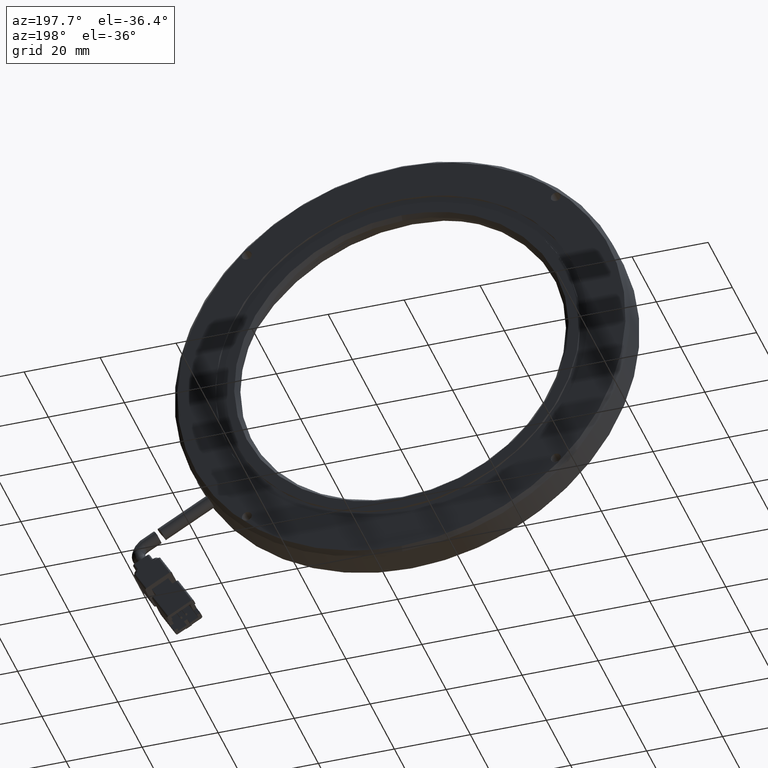
[diagram: clean part render]
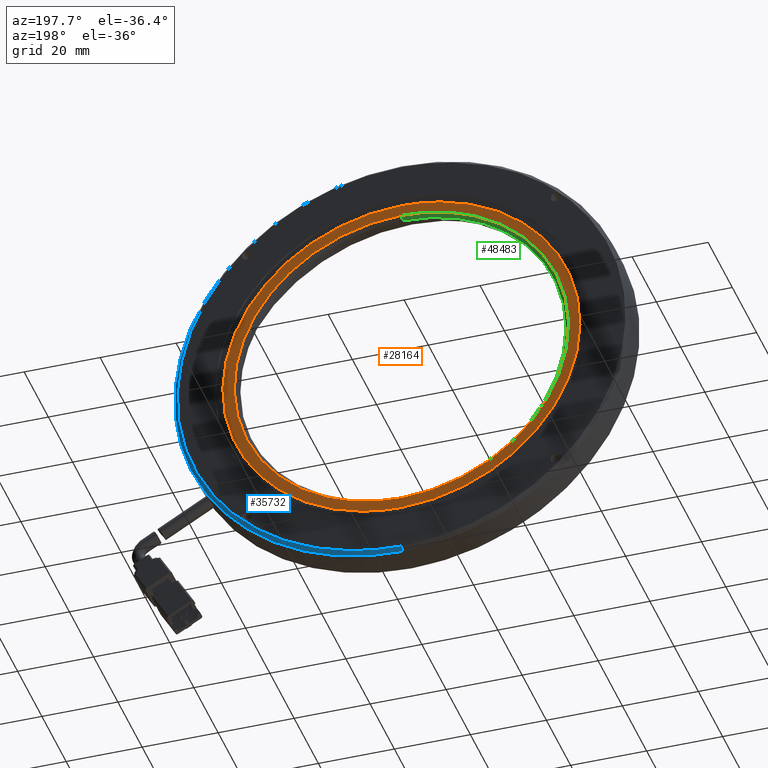
[diagram: same view with three faces highlighted in distinct colors, each labeled with its STEP entity id]
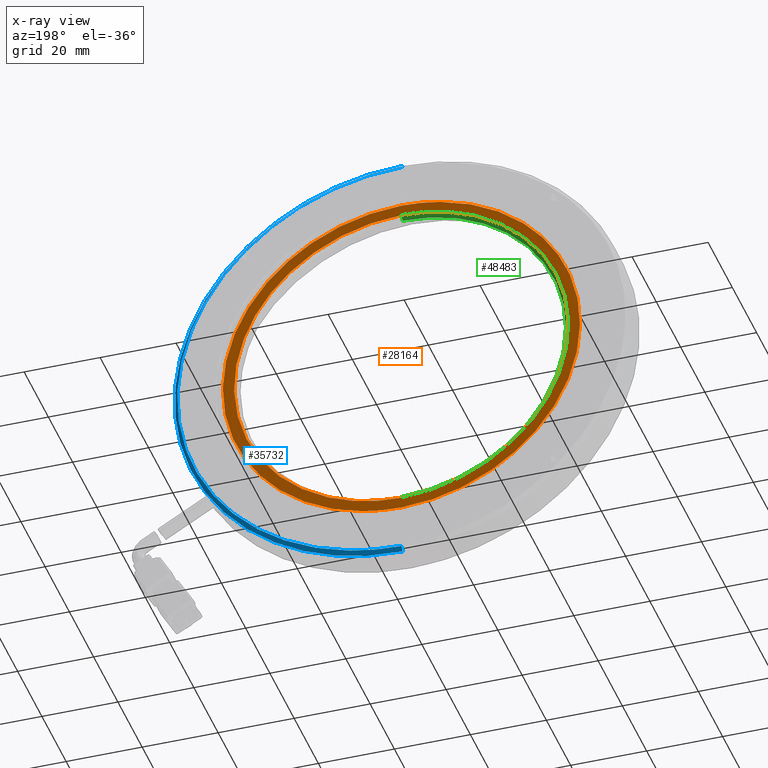
[diagram: x-ray of the same camera — body ghosted, the three highlighted faces saturated]
A machine part, auxiliary view with three faces highlighted in distinct colors.
The next image is the same camera in x-ray (body ghosted, the three faces saturated) — at least one of them is partly hidden behind the body in this view.
Their STEP definitions:

[orange] entity #28164 — the highlighted planar face has unit normal (0, -1, 0).
#1624 = CARTESIAN_POINT ( 'NONE',  ( 42.27875614161242600, 28.01889671361272600, -41.75274860195248300 ) ) ;
#1828 = CARTESIAN_POINT ( 'NONE',  ( 12.45624510954868000, 28.01889671361273000, 2.879793265795462800 ) ) ;
#1859 = CARTESIAN_POINT ( 'NONE',  ( 59.33603837535002900, 28.01889671361271900, 44.00000000000101600 ) ) ;
#2050 = CARTESIAN_POINT ( 'NONE',  ( 45.04781209515619600, 28.01889671361273300, 42.59273254218289400 ) ) ;
#2078 = CARTESIAN_POINT ( 'NONE',  ( 99.04897765173407700, 28.01889671361272200, 11.40843301438941500 ) ) ;
#2174 = CARTESIAN_POINT ( 'NONE',  ( 15.66712912229307600, 28.01889671362000900, -23.55259787212648300 ) ) ;
#2283 = CARTESIAN_POINT ( 'NONE',  ( 78.50687477218045300, 28.01889671361272200, -38.18459035704531600 ) ) ;
#2384 = CARTESIAN_POINT ( 'NONE',  ( 21.04583658217751500, 28.01889671362000200, 31.05757796684702400 ) ) ;
#3581 = CARTESIAN_POINT ( 'NONE',  ( 101.0564935736246200, 28.01889671361999800, 15.14247953575757100 ) ) ;
#3660 = ORIENTED_EDGE ( 'NONE', *, *, #35077, .F. ) ;
#3782 = CARTESIAN_POINT ( 'NONE',  ( 85.12721967929337600, 28.01889671361999500, -37.36904331737033400 ) ) ;
#4175 = B_SPLINE_CURVE_WITH_KNOTS ( 'NONE', 3,
 ( #11960, #6920, #41556, #46542, #16950, #51505, #21869, #56477, #26808, #61440, #31823, #2174, #36772, #7141, #41774, #12166, #46744, #17155, #51718, #22083, #56681, #27017, #61648, #32036, #2384, #36989, #7356, #41996, #12390, #46969, #17362, #51928, #22297, #56888, #27235, #61861 ),
 .UNSPECIFIED., .F., .F.,
 ( 4, 2, 2, 2, 2, 2, 2, 2, 2, 2, 2, 2, 2, 2, 2, 2, 2, 4 ),
 ( 0.0000000000000000000, 0.06249999999999993100, 0.1249999999999998600, 0.1874999999999997800, 0.2499999999999997800, 0.3124999999999997800, 0.3749999999999997200, 0.4374999999999997800, 0.4999999999999997800, 0.5624999999999997800, 0.6249999999999998900, 0.6874999999999998900, 0.7499999999999998900, 0.8125000000000000000, 0.8750000000000000000, 0.9375000000000001100, 0.9687500000000000000, 1.000000000000000000 ),
 .UNSPECIFIED. ) ;
#5047 = B_SPLINE_CURVE_WITH_KNOTS ( 'NONE', 3,
 ( #32806, #33019, #8355, #42962, #13354, #47936, #18338, #52922, #23258, #57904, #28205, #62843, #33232, #3581, #38183, #8567, #43182, #13568, #48133, #18544, #53146, #23469, #58103, #28428, #63058, #33436, #3782, #38390, #8789, #43398, #13783, #48355, #18765, #53359, #23675, #58327 ),
 .UNSPECIFIED., .F., .F.,
 ( 4, 2, 2, 2, 2, 2, 2, 2, 2, 2, 2, 2, 2, 2, 2, 2, 2, 4 ),
 ( 0.0000000000000000000, 0.06250000000000005600, 0.1250000000000001100, 0.1875000000000001700, 0.2500000000000002200, 0.3125000000000002200, 0.3750000000000002200, 0.4375000000000002200, 0.5000000000000002200, 0.5625000000000002200, 0.6250000000000002200, 0.6875000000000001100, 0.7500000000000001100, 0.8125000000000000000, 0.8750000000000000000, 0.9374999999999998900, 0.9687500000000000000, 1.000000000000000000 ),
 .UNSPECIFIED. ) ;
#6405 = CARTESIAN_POINT ( 'NONE',  ( 53.57645184375905200, 28.01889671361273300, -44.00000000000159900 ) ) ;
#6597 = CARTESIAN_POINT ( 'NONE',  ( 34.40561544690378800, 28.01889671361272600, -38.18459035703622100 ) ) ;
#6810 = CARTESIAN_POINT ( 'NONE',  ( 13.86351256737062500, 28.01889671361273000, 11.40843301440701300 ) ) ;
#6831 = CARTESIAN_POINT ( 'NONE',  ( 67.86467812396141100, 28.01889671361272200, 42.59273254217816200 ) ) ;
#6920 = CARTESIAN_POINT ( 'NONE',  ( 53.37796336459959400, 28.01889671362000200, -46.99999999999999300 ) ) ;
#7004 = CARTESIAN_POINT ( 'NONE',  ( 53.57645184376814700, 28.01889671361273000, 44.00000000000220300 ) ) ;
#7032 = CARTESIAN_POINT ( 'NONE',  ( 100.4562451095524800, 28.01889671361272200, 2.879793265777309800 ) ) ;
#7141 = CARTESIAN_POINT ( 'NONE',  ( 11.85600634319127900, 28.01889671362000200, -15.14251150347716800 ) ) ;
#7251 = CARTESIAN_POINT ( 'NONE',  ( 70.63373407747030800, 28.01889671361272200, -41.75274860195832400 ) ) ;
#7356 = CARTESIAN_POINT ( 'NONE',  ( 27.78524107864050300, 28.01889671362000200, 37.36902756966435400 ) ) ;
#8355 = CARTESIAN_POINT ( 'NONE',  ( 62.60667653709536800, 28.01889671361999800, 46.69735417443386200 ) ) ;
#8567 = CARTESIAN_POINT ( 'NONE',  ( 103.1536635141498800, 28.01889671361999800, 6.150444202660343900 ) ) ;
#8789 = CARTESIAN_POINT ( 'NONE',  ( 77.28600821579917100, 28.01889671362000200, -42.24442759209775000 ) ) ;
#9086 = DIRECTION ( 'NONE',  ( 0.0000000000000000000, 0.0000000000000000000, 1.000000000000000000 ) ) ;
#11621 = CARTESIAN_POINT ( 'NONE',  ( 27.37986808399518800, 28.01889671361273000, -33.14901971886386900 ) ) ;
#11828 = CARTESIAN_POINT ( 'NONE',  ( 16.90759485050915200, 28.01889671361273000, 19.49865308019773700 ) ) ;
#11859 = CARTESIAN_POINT ( 'NONE',  ( 75.95489818975181600, 28.01889671361272200, 39.54865025903883000 ) ) ;
#11960 = CARTESIAN_POINT ( 'NONE',  ( 56.45624510954474600, 28.01889671361816200, -47.00000000000000000 ) ) ;
#12074 = CARTESIAN_POINT ( 'NONE',  ( 100.1726172428548700, 28.01889671361272200, -5.759515323031958900 ) ) ;
#12116 = EDGE_CURVE ( 'NONE', #16103, #16167, #28602, .T. ) ;
#12166 = CARTESIAN_POINT ( 'NONE',  ( 9.758826704907450600, 28.01889671361999800, -6.150444202682146900 ) ) ;
#12174 = EDGE_LOOP ( 'NONE', ( #14678, #3660 ) ) ;
#12288 = CARTESIAN_POINT ( 'NONE',  ( 62.21576043255039700, 28.01889671361272200, -43.71637213330903600 ) ) ;
#12390 = CARTESIAN_POINT ( 'NONE',  ( 35.62648200300878900, 28.01889671361999500, 42.24442759199448000 ) ) ;
#13354 = CARTESIAN_POINT ( 'NONE',  ( 71.59869958405859300, 28.01889671361999100, 44.60018796082542300 ) ) ;
#13568 = CARTESIAN_POINT ( 'NONE',  ( 103.4562778533290300, 28.01889671361999800, -3.077915830574339900 ) ) ;
#13783 = CARTESIAN_POINT ( 'NONE',  ( 68.64422515175417100, 28.01889671361999100, -45.49640774860339600 ) ) ;
#14678 = ORIENTED_EDGE ( 'NONE', *, *, #12116, .F. ) ;
#16103 = VERTEX_POINT ( 'NONE', #38941 ) ;
#16167 = VERTEX_POINT ( 'NONE', #34624 ) ;
#16617 = CARTESIAN_POINT ( 'NONE',  ( 21.47150958395869600, 28.01889671361273300, -26.83955084307982000 ) ) ;
#16837 = CARTESIAN_POINT ( 'NONE',  ( 21.47150958396423800, 28.01889671361274000, 26.83955084308705700 ) ) ;
#16862 = CARTESIAN_POINT ( 'NONE',  ( 83.29579595264066000, 28.01889671361272200, 34.98473552558299800 ) ) ;
#16950 = CARTESIAN_POINT ( 'NONE',  ( 41.31379063470103600, 28.01889671361999100, -44.60018796062404800 ) ) ;
#17057 = CARTESIAN_POINT ( 'NONE',  ( 98.20899371149808100, 28.01889671361272200, -14.17748896795047900 ) ) ;
#17155 = CARTESIAN_POINT ( 'NONE',  ( 9.456212365770921800, 28.01889671361999800, 3.077915830179815100 ) ) ;
#17265 = CARTESIAN_POINT ( 'NONE',  ( 56.45624510955278900, 28.01889671361563600, -44.00000000000096600 ) ) ;
#17362 = CARTESIAN_POINT ( 'NONE',  ( 44.26823182231879600, 28.01889671362000600, 45.49640447385357300 ) ) ;
#18162 = EDGE_CURVE ( 'NONE', #28397, #28272, #4175, .T. ) ;
#18338 = CARTESIAN_POINT ( 'NONE',  ( 80.00880659876021600, 28.01889671361999100, 40.78906153549915800 ) ) ;
#18544 = CARTESIAN_POINT ( 'NONE',  ( 101.9527235094824100, 28.01889671361999800, -12.18799409606595900 ) ) ;
#18765 = CARTESIAN_POINT ( 'NONE',  ( 62.59476272193435900, 28.01889671361999800, -46.62280358932520800 ) ) ;
#21545 = CARTESIAN_POINT ( 'NONE',  ( 16.90759485050512400, 28.01889671361273300, -19.49865308018957700 ) ) ;
#21734 = CARTESIAN_POINT ( 'NONE',  ( 27.37986808400204100, 28.01889671361273000, 33.14901971886985900 ) ) ;
#21766 = CARTESIAN_POINT ( 'NONE',  ( 89.60526482842286100, 28.01889671361272200, 29.07637702554452700 ) ) ;
#21869 = CARTESIAN_POINT ( 'NONE',  ( 32.90368362023824700, 28.01889671361999800, -40.78906153540997800 ) ) ;
#21981 = CARTESIAN_POINT ( 'NONE',  ( 94.64083546657937500, 28.01889671361272200, -22.05062966265801100 ) ) ;
#22083 = CARTESIAN_POINT ( 'NONE',  ( 10.95976670950331000, 28.01889671362000200, 12.18799409553049700 ) ) ;
#22297 = CARTESIAN_POINT ( 'NONE',  ( 50.31772749712150300, 28.01889671362000600, 46.62280358932374500 ) ) ;
#22682 = ORIENTED_EDGE ( 'NONE', *, *, #32540, .T. ) ;
#23258 = CARTESIAN_POINT ( 'NONE',  ( 87.51380188337918800, 28.01889671361999500, 35.41043435053649800 ) ) ;
#23469 = CARTESIAN_POINT ( 'NONE',  ( 98.70076174155750000, 28.01889671361999500, -20.82972782845132500 ) ) ;
#23675 = CARTESIAN_POINT ( 'NONE',  ( 57.99573682294303700, 28.01889671361999800, -47.00000000000000700 ) ) ;
#24683 = FACE_BOUND ( 'NONE', #12174, .T. ) ;
#25263 = EDGE_LOOP ( 'NONE', ( #34090, #22682 ) ) ;
#26484 = CARTESIAN_POINT ( 'NONE',  ( 13.86351256736827700, 28.01889671361273700, -11.40843301439821500 ) ) ;
#26686 = CARTESIAN_POINT ( 'NONE',  ( 34.40561544691168200, 28.01889671361272600, 38.18459035704077600 ) ) ;
#26711 = CARTESIAN_POINT ( 'NONE',  ( 94.64083546659301800, 28.01889671361272200, 22.05062966263436800 ) ) ;
#26808 = CARTESIAN_POINT ( 'NONE',  ( 25.39868833551739900, 28.01889671361999800, -35.41043435029041600 ) ) ;
#26922 = CARTESIAN_POINT ( 'NONE',  ( 89.60526482840485600, 28.01889671361272200, -29.07637702556507300 ) ) ;
#27017 = CARTESIAN_POINT ( 'NONE',  ( 14.21172847767351000, 28.01889671361999500, 20.82972782869671100 ) ) ;
#27235 = CARTESIAN_POINT ( 'NONE',  ( 54.91675339618277700, 28.01889671361999800, 46.99999999999999300 ) ) ;
#28164 = ADVANCED_FACE ( 'NONE', ( #24683, #43284 ), #63343, .F. ) ;
#28205 = CARTESIAN_POINT ( 'NONE',  ( 93.82527267904498600, 28.01889671361999800, 28.67100403122686500 ) ) ;
#28272 = VERTEX_POINT ( 'NONE', #29364 ) ;
#28397 = VERTEX_POINT ( 'NONE', #55775 ) ;
#28428 = CARTESIAN_POINT ( 'NONE',  ( 93.82536689066581900, 28.01889671361999500, -28.67098680179222500 ) ) ;
#28602 = B_SPLINE_CURVE_WITH_KNOTS ( 'NONE', 3,
 ( #36474, #1859, #61140, #6831, #41464, #11859, #46450, #16862, #51397, #21766, #56387, #26711, #61345, #31726, #2078, #36675, #7032, #41669, #12074, #46647, #17057, #51614, #21981, #56573, #26922, #61548, #31936, #2283, #36890, #7251, #41884, #12288, #46864, #17265 ),
 .UNSPECIFIED., .F., .F.,
 ( 4, 2, 2, 2, 2, 2, 2, 2, 2, 2, 2, 2, 2, 2, 2, 2, 4 ),
 ( 0.0000000000000000000, 0.06250000000000000000, 0.1250000000000000000, 0.1875000000000000000, 0.2500000000000000000, 0.3125000000000000000, 0.3750000000000000000, 0.4375000000000000000, 0.5000000000000000000, 0.5625000000000000000, 0.6250000000000000000, 0.6875000000000000000, 0.7500000000000000000, 0.8125000000000000000, 0.8750000000000000000, 0.9375000000000000000, 1.000000000000000000 ),
 .UNSPECIFIED. ) ;
#29364 = CARTESIAN_POINT ( 'NONE',  ( 56.45624510956241700, 28.01889671361816200, 47.00000000000000000 ) ) ;
#31277 = CARTESIAN_POINT ( 'NONE',  ( 45.04781209514740700, 28.01889671361271900, -42.59273254218052800 ) ) ;
#31488 = CARTESIAN_POINT ( 'NONE',  ( 12.45624510954808500, 28.01889671361273300, -2.879793265786411800 ) ) ;
#31692 = CARTESIAN_POINT ( 'NONE',  ( 42.27875614162105900, 28.01889671361273300, 41.75274860195541700 ) ) ;
#31726 = CARTESIAN_POINT ( 'NONE',  ( 98.20899371150686400, 28.01889671361272200, 14.17748896792462300 ) ) ;
#31823 = CARTESIAN_POINT ( 'NONE',  ( 19.08721754034947800, 28.01889671361999800, -28.67100403168891300 ) ) ;
#31936 = CARTESIAN_POINT ( 'NONE',  ( 83.29579595261897400, 28.01889671361272200, -34.98473552559961100 ) ) ;
#32036 = CARTESIAN_POINT ( 'NONE',  ( 19.08712332899244400, 28.01889671361999800, 28.67098680249215500 ) ) ;
#32540 = EDGE_CURVE ( 'NONE', #28272, #28397, #5047, .T. ) ;
#32806 = CARTESIAN_POINT ( 'NONE',  ( 56.45624510956241700, 28.01889671361816200, 47.00000000000000000 ) ) ;
#33019 = CARTESIAN_POINT ( 'NONE',  ( 59.53452685472065300, 28.01889671362000600, 47.00000000000000700 ) ) ;
#33232 = CARTESIAN_POINT ( 'NONE',  ( 98.70067270154653700, 28.01889671361999800, 20.82976310653620900 ) ) ;
#33436 = CARTESIAN_POINT ( 'NONE',  ( 87.51389764605764300, 28.01889671361999500, -35.41043583182949600 ) ) ;
#34090 = ORIENTED_EDGE ( 'NONE', *, *, #18162, .T. ) ;
#34624 = CARTESIAN_POINT ( 'NONE',  ( 56.45624510955278900, 28.01889671361563600, -44.00000000000096600 ) ) ;
#35077 = EDGE_CURVE ( 'NONE', #16167, #16103, #59916, .T. ) ;
#36251 = CARTESIAN_POINT ( 'NONE',  ( 36.95759202935632700, 28.01889671361272600, -39.54865025904285100 ) ) ;
#36449 = CARTESIAN_POINT ( 'NONE',  ( 12.73987297624390500, 28.01889671361273300, 5.759515323022944800 ) ) ;
#36474 = CARTESIAN_POINT ( 'NONE',  ( 56.45624510956204000, 28.01889671361563600, 44.00000000000096600 ) ) ;
#36649 = CARTESIAN_POINT ( 'NONE',  ( 50.69672978654060800, 28.01889671361272600, 43.71637213330785700 ) ) ;
#36675 = CARTESIAN_POINT ( 'NONE',  ( 100.1726172428584400, 28.01889671361272200, 5.759515323004880100 ) ) ;
#36772 = CARTESIAN_POINT ( 'NONE',  ( 14.21180781983569800, 28.01889671361999800, -20.82973113881216100 ) ) ;
#36890 = CARTESIAN_POINT ( 'NONE',  ( 75.95489818972734500, 28.01889671361272200, -39.54865025905089500 ) ) ;
#36989 = CARTESIAN_POINT ( 'NONE',  ( 25.39861620540418500, 28.01889671362000200, 35.41045946470559600 ) ) ;
#38183 = CARTESIAN_POINT ( 'NONE',  ( 101.9526430628591500, 28.01889671361999800, 12.18804606682832600 ) ) ;
#38390 = CARTESIAN_POINT ( 'NONE',  ( 80.00887244361995000, 28.01889671361999500, -40.78910023908846200 ) ) ;
#38941 = CARTESIAN_POINT ( 'NONE',  ( 56.45624510956204000, 28.01889671361563600, 44.00000000000096600 ) ) ;
#41225 = CARTESIAN_POINT ( 'NONE',  ( 29.61669426646656700, 28.01889671361271500, -34.98473552558852600 ) ) ;
#41430 = CARTESIAN_POINT ( 'NONE',  ( 14.70349650759897000, 28.01889671361273300, 14.17748896794186700 ) ) ;
#41464 = CARTESIAN_POINT ( 'NONE',  ( 70.63373407749620000, 28.01889671361272600, 41.75274860194954800 ) ) ;
#41556 = CARTESIAN_POINT ( 'NONE',  ( 50.30581368313209400, 28.01889671361999800, -46.69735417472219300 ) ) ;
#41644 = CARTESIAN_POINT ( 'NONE',  ( 56.45624510956204000, 28.01889671361563600, 44.00000000000096600 ) ) ;
#41669 = CARTESIAN_POINT ( 'NONE',  ( 100.4562451095507200, 28.01889671361272200, -2.879793265804564000 ) ) ;
#41774 = CARTESIAN_POINT ( 'NONE',  ( 10.95984715628294000, 28.01889671361999100, -12.18804606680415000 ) ) ;
#41884 = CARTESIAN_POINT ( 'NONE',  ( 67.86467812393505000, 28.01889671361272200, -42.59273254218523900 ) ) ;
#41996 = CARTESIAN_POINT ( 'NONE',  ( 32.90364723663602600, 28.01889671361999800, 40.78911598678773500 ) ) ;
#42962 = CARTESIAN_POINT ( 'NONE',  ( 68.64430395154096200, 28.01889671362000200, 45.49646218346579500 ) ) ;
#43182 = CARTESIAN_POINT ( 'NONE',  ( 103.4562123657709400, 28.01889671361999800, 3.077915830545209500 ) ) ;
#43284 = FACE_OUTER_BOUND ( 'NONE', #25263, .T. ) ;
#43398 = CARTESIAN_POINT ( 'NONE',  ( 71.59872464558561900, 28.01889671361999500, -44.60024846397715200 ) ) ;
#46223 = CARTESIAN_POINT ( 'NONE',  ( 23.30722539068314000, 28.01889671361272600, -29.07637702555139800 ) ) ;
#46427 = CARTESIAN_POINT ( 'NONE',  ( 18.27165475251605300, 28.01889671361273300, 22.05062966265017000 ) ) ;
#46450 = CARTESIAN_POINT ( 'NONE',  ( 78.50687477220410000, 28.01889671361272600, 38.18459035703165900 ) ) ;
#46542 = CARTESIAN_POINT ( 'NONE',  ( 44.26818626641495800, 28.01889671361999100, -45.49646218317413100 ) ) ;
#46647 = CARTESIAN_POINT ( 'NONE',  ( 99.04897765172697200, 28.01889671361272200, -11.40843301441579200 ) ) ;
#46744 = CARTESIAN_POINT ( 'NONE',  ( 9.456277853329041200, 28.01889671361999800, -3.077915830150699700 ) ) ;
#46864 = CARTESIAN_POINT ( 'NONE',  ( 59.33603837532278600, 28.01889671361272600, -44.00000000000278500 ) ) ;
#46969 = CARTESIAN_POINT ( 'NONE',  ( 41.31376557379297100, 28.01889671361999500, 44.60024846407486600 ) ) ;
#47936 = CARTESIAN_POINT ( 'NONE',  ( 77.28603327737998500, 28.01889671361999800, 42.24448809522713300 ) ) ;
#48133 = CARTESIAN_POINT ( 'NONE',  ( 103.1535830675153000, 28.01889671362000200, -6.150496173479857600 ) ) ;
#48355 = CARTESIAN_POINT ( 'NONE',  ( 64.11612279055729900, 28.01889671362000200, -46.39715839413153700 ) ) ;
#50741 = CARTESIAN_POINT ( 'NONE',  ( 56.45624510955278900, 28.01889671361563600, -44.00000000000096600 ) ) ;
#51167 = CARTESIAN_POINT ( 'NONE',  ( 18.27165475251150200, 28.01889671361274000, -22.05062966264228000 ) ) ;
#51366 = CARTESIAN_POINT ( 'NONE',  ( 23.30722539068914400, 28.01889671361273300, 29.07637702555824800 ) ) ;
#51397 = CARTESIAN_POINT ( 'NONE',  ( 85.53262213511165200, 28.01889671361272600, 33.14901971885784300 ) ) ;
#51505 = CARTESIAN_POINT ( 'NONE',  ( 35.62645694204687200, 28.01889671362000200, -42.24448809542298700 ) ) ;
#51614 = CARTESIAN_POINT ( 'NONE',  ( 96.00489536858678700, 28.01889671361272200, -19.49865308020589800 ) ) ;
#51718 = CARTESIAN_POINT ( 'NONE',  ( 9.758907151698434000, 28.01889671362000200, 6.150496174012922700 ) ) ;
#51928 = CARTESIAN_POINT ( 'NONE',  ( 48.79638405104377300, 28.01889671361999800, 46.39716003150400100 ) ) ;
#52922 = CARTESIAN_POINT ( 'NONE',  ( 85.12728552420152500, 28.01889671361999800, 37.36908202092725900 ) ) ;
#53146 = CARTESIAN_POINT ( 'NONE',  ( 101.0564045335913300, 28.01889671362000200, -15.14251481389625000 ) ) ;
#53359 = CARTESIAN_POINT ( 'NONE',  ( 59.53133868810628100, 28.01889671361999800, -46.92456071786504200 ) ) ;
#53424 = CARTESIAN_POINT ( 'NONE',  ( 105.3362185838999900, 28.01889671361999800, -48.88000000000000300 ) ) ;
#55775 = CARTESIAN_POINT ( 'NONE',  ( 56.45624510954474600, 28.01889671361816200, -47.00000000000000000 ) ) ;
#55813 = AXIS2_PLACEMENT_3D ( 'NONE', #53424, #62912, #9086 ) ;
#56150 = CARTESIAN_POINT ( 'NONE',  ( 14.70349650759604600, 28.01889671361273700, -14.17748896793324900 ) ) ;
#56368 = CARTESIAN_POINT ( 'NONE',  ( 29.61669426647380700, 28.01889671361273300, 34.98473552559408300 ) ) ;
#56387 = CARTESIAN_POINT ( 'NONE',  ( 91.44098063514681500, 28.01889671361272200, 26.83955084307257600 ) ) ;
#56477 = CARTESIAN_POINT ( 'NONE',  ( 27.78520469498986900, 28.01889671362000200, -37.36908202100972400 ) ) ;
#56573 = CARTESIAN_POINT ( 'NONE',  ( 91.44098063513023100, 28.01889671361272200, -26.83955084309424100 ) ) ;
#56681 = CARTESIAN_POINT ( 'NONE',  ( 11.85608568537575500, 28.01889671362000200, 15.14251481364641100 ) ) ;
#56888 = CARTESIAN_POINT ( 'NONE',  ( 53.38115153101973900, 28.01889671362000200, 46.92456071786475000 ) ) ;
#57904 = CARTESIAN_POINT ( 'NONE',  ( 91.86672576727340800, 28.01889671361999800, 31.05760308098181000 ) ) ;
#58103 = CARTESIAN_POINT ( 'NONE',  ( 97.24526688485518400, 28.01889671361999500, -23.55261510207763800 ) ) ;
#58327 = CARTESIAN_POINT ( 'NONE',  ( 56.45624510954474600, 28.01889671361816200, -47.00000000000000000 ) ) ;
#59916 = B_SPLINE_CURVE_WITH_KNOTS ( 'NONE', 3,
 ( #50741, #6405, #60902, #31277, #1624, #36251, #6597, #41225, #11621, #46223, #16617, #51167, #21545, #56150, #26484, #61119, #31488, #1828, #36449, #6810, #41430, #11828, #46427, #16837, #51366, #21734, #56368, #26686, #61315, #31692, #2050, #36649, #7004, #41644 ),
 .UNSPECIFIED., .F., .F.,
 ( 4, 2, 2, 2, 2, 2, 2, 2, 2, 2, 2, 2, 2, 2, 2, 2, 4 ),
 ( 0.0000000000000000000, 0.06249999999999997200, 0.1249999999999999400, 0.1874999999999999200, 0.2499999999999998900, 0.3124999999999998900, 0.3749999999999998300, 0.4374999999999997800, 0.4999999999999997800, 0.5624999999999997800, 0.6249999999999997800, 0.6874999999999996700, 0.7499999999999996700, 0.8124999999999996700, 0.8749999999999996700, 0.9374999999999997800, 1.000000000000000000 ),
 .UNSPECIFIED. ) ;
#60902 = CARTESIAN_POINT ( 'NONE',  ( 50.69672978653158400, 28.01889671361273000, -43.71637213330667700 ) ) ;
#61119 = CARTESIAN_POINT ( 'NONE',  ( 12.73987297624272200, 28.01889671361273700, -5.759515323013913800 ) ) ;
#61140 = CARTESIAN_POINT ( 'NONE',  ( 62.21576043257745400, 28.01889671361271900, 43.71637213330548400 ) ) ;
#61315 = CARTESIAN_POINT ( 'NONE',  ( 36.95759202936447700, 28.01889671361273300, 39.54865025904688000 ) ) ;
#61345 = CARTESIAN_POINT ( 'NONE',  ( 96.00489536859888100, 28.01889671361272200, 19.49865308018142000 ) ) ;
#61440 = CARTESIAN_POINT ( 'NONE',  ( 21.04576445202310400, 28.01889671361999800, -31.05760308122103200 ) ) ;
#61548 = CARTESIAN_POINT ( 'NONE',  ( 85.53262213509110300, 28.01889671361272200, -33.14901971887584900 ) ) ;
#61648 = CARTESIAN_POINT ( 'NONE',  ( 15.66722333368246800, 28.01889671362000200, 23.55261510137165700 ) ) ;
#61861 = CARTESIAN_POINT ( 'NONE',  ( 56.45624510956241700, 28.01889671361816200, 47.00000000000000000 ) ) ;
#62843 = CARTESIAN_POINT ( 'NONE',  ( 97.24536109650841800, 28.01889671361999800, 23.55259787259453900 ) ) ;
#62912 = DIRECTION ( 'NONE',  ( 0.0000000000000000000, -1.000000000000000000, 0.0000000000000000000 ) ) ;
#63058 = CARTESIAN_POINT ( 'NONE',  ( 91.86663000455378400, 28.01889671362000200, -31.05760159972998100 ) ) ;
#63343 = PLANE ( 'NONE',  #55813 ) ;

[blue] entity #35732 — the highlighted conical surface has half-angle 45 deg.
#1010 = LINE ( 'NONE', #29962, #48956 ) ;
#2207 = CARTESIAN_POINT ( 'NONE',  ( 92.39199046783497200, 28.01889671362000200, 46.83324520773486200 ) ) ;
#2415 = CARTESIAN_POINT ( 'NONE',  ( 113.4765675118373900, 28.01889671362000200, 15.27800210319274000 ) ) ;
#2625 = CARTESIAN_POINT ( 'NONE',  ( 111.7044484767741300, 28.01889671362000600, -20.79342092767106800 ) ) ;
#2845 = CARTESIAN_POINT ( 'NONE',  ( 87.62853608177533700, 28.01889671361999500, -50.13005939586366100 ) ) ;
#3890 = AXIS2_PLACEMENT_3D ( 'NONE', #50796, #16454, #6460 ) ;
#6460 = DIRECTION ( 'NONE',  ( 0.0000000000000000000, 0.0000000000000000000, -1.000000000000000000 ) ) ;
#6474 = DIRECTION ( 'NONE',  ( 0.0000000000000000000, -0.7071067811838023200, -0.7071067811892927100 ) ) ;
#6949 = CARTESIAN_POINT ( 'NONE',  ( 64.16194436042422900, 28.01889671361999800, 58.52654708914537500 ) ) ;
#7168 = CARTESIAN_POINT ( 'NONE',  ( 96.80941079911394800, 28.01889671362000600, 43.08541133582834000 ) ) ;
#7382 = CARTESIAN_POINT ( 'NONE',  ( 114.6995051503898800, 28.01889671362000200, 9.615465404307000700 ) ) ;
#7596 = CARTESIAN_POINT ( 'NONE',  ( 109.4003016199119400, 28.01889671361999800, -26.10856582454262300 ) ) ;
#7808 = CARTESIAN_POINT ( 'NONE',  ( 82.56482791380678100, 28.01889671362001300, -52.94408827661086300 ) ) ;
#7873 = VECTOR ( 'NONE', #6474, 1000.000000000000000 ) ;
#9306 = AXIS2_PLACEMENT_3D ( 'NONE', #55839, #26169, #60802 ) ;
#9892 = ORIENTED_EDGE ( 'NONE', *, *, #15947, .F. ) ;
#11262 = VERTEX_POINT ( 'NONE', #23911 ) ;
#11458 = EDGE_CURVE ( 'NONE', #15137, #12827, #1010, .T. ) ;
#11983 = CARTESIAN_POINT ( 'NONE',  ( 69.86144409146592700, 28.01889671362000200, 57.48943516319178600 ) ) ;
#12201 = CARTESIAN_POINT ( 'NONE',  ( 100.8382080859112600, 28.01889671361999800, 38.92264139947154400 ) ) ;
#12424 = CARTESIAN_POINT ( 'NONE',  ( 115.3615283556749900, 28.01889671361999500, 3.860326517130208600 ) ) ;
#12641 = CARTESIAN_POINT ( 'NONE',  ( 106.5862745564296100, 28.01889671361999800, -31.17227096061779400 ) ) ;
#12827 = VERTEX_POINT ( 'NONE', #62534 ) ;
#12856 = CARTESIAN_POINT ( 'NONE',  ( 77.24967982112242700, 28.01889671362000200, -55.24823664502293500 ) ) ;
#14378 = ORIENTED_EDGE ( 'NONE', *, *, #44693, .F. ) ;
#15137 = VERTEX_POINT ( 'NONE', #16407 ) ;
#15947 = EDGE_CURVE ( 'NONE', #15137, #47708, #59350, .T. ) ;
#16407 = CARTESIAN_POINT ( 'NONE',  ( 56.45624510953946600, 28.01889671361563600, 58.99999999999903400 ) ) ;
#16454 = DIRECTION ( 'NONE',  ( -0.0000000000000000000, -1.000000000000000000, -0.0000000000000000000 ) ) ;
#16776 = CARTESIAN_POINT ( 'NONE',  ( 56.45624510953946600, 28.01889671361563600, 58.99999999999903400 ) ) ;
#16978 = CARTESIAN_POINT ( 'NONE',  ( 75.43184442828329800, 28.01889671361999800, 55.89866854959598900 ) ) ;
#17180 = CARTESIAN_POINT ( 'NONE',  ( 104.4395828073696900, 28.01889671361999800, 34.38502514932797300 ) ) ;
#17387 = CARTESIAN_POINT ( 'NONE',  ( 115.4562614821830000, 28.01889671361999100, -1.931972714579847100 ) ) ;
#17599 = CARTESIAN_POINT ( 'NONE',  ( 103.2894679054939400, 28.01889671362000600, -35.93577008677760200 ) ) ;
#17808 = CARTESIAN_POINT ( 'NONE',  ( 71.73427958536795800, 28.01889671361999800, -57.02031429274627100 ) ) ;
#18084 = CIRCLE ( 'NONE', #9306, 60.00000000000000000 ) ;
#20283 = DIRECTION ( 'NONE',  ( 8.659560562388551900E-017, -0.7071067811838023200, 0.7071067811892927100 ) ) ;
#21074 = LINE ( 'NONE', #21407, #7873 ) ;
#21407 = CARTESIAN_POINT ( 'NONE',  ( 56.45624510954999000, 28.01889671361273300, -58.99999999999837300 ) ) ;
#21895 = CARTESIAN_POINT ( 'NONE',  ( 80.81949937034697500, 28.01889671362000900, 53.76956720069538400 ) ) ;
#22108 = CARTESIAN_POINT ( 'NONE',  ( 107.5788517564442400, 28.01889671361999800, 29.51626231036929900 ) ) ;
#22327 = CARTESIAN_POINT ( 'NONE',  ( 114.9827970949415900, 28.01889671362001300, -7.705666239084291800 ) ) ;
#22532 = CARTESIAN_POINT ( 'NONE',  ( 99.54163171763644900, 28.01889671362000200, -40.35318810228346100 ) ) ;
#22739 = CARTESIAN_POINT ( 'NONE',  ( 66.07174352584873100, 28.01889671362000200, -58.24325514336258900 ) ) ;
#23911 = CARTESIAN_POINT ( 'NONE',  ( 56.45624510954999000, 27.01889671361802000, -60.00000000000085300 ) ) ;
#26169 = DIRECTION ( 'NONE',  ( 0.0000000000000000000, 1.000000000000000000, 0.0000000000000000000 ) ) ;
#26843 = CARTESIAN_POINT ( 'NONE',  ( 85.97252285599384400, 28.01889671361999500, 51.12263552595820900 ) ) ;
#27039 = CARTESIAN_POINT ( 'NONE',  ( 110.2257820572478700, 28.01889671361999800, 24.36324172956472000 ) ) ;
#27266 = CARTESIAN_POINT ( 'NONE',  ( 113.9456883811406000, 28.01889671362000200, -13.40516660886010300 ) ) ;
#27479 = CARTESIAN_POINT ( 'NONE',  ( 95.37885970354580000, 28.01889671362000200, -44.38198285739657900 ) ) ;
#27697 = CARTESIAN_POINT ( 'NONE',  ( 60.31642205203561200, 28.01889671362000200, -58.90529962455118400 ) ) ;
#27857 = FACE_OUTER_BOUND ( 'NONE', #61286, .T. ) ;
#29962 = CARTESIAN_POINT ( 'NONE',  ( 56.45624510954999700, 28.01889671361273300, 58.99999999999837300 ) ) ;
#31849 = CARTESIAN_POINT ( 'NONE',  ( 90.84128845129865200, 28.01889671362000600, 47.98336492482911100 ) ) ;
#32059 = CARTESIAN_POINT ( 'NONE',  ( 112.3548823236488700, 28.01889671361999800, 18.97558981287003700 ) ) ;
#32277 = CARTESIAN_POINT ( 'NONE',  ( 112.3549249017589200, 28.01889671362000200, -18.97556789596630400 ) ) ;
#32494 = CARTESIAN_POINT ( 'NONE',  ( 90.84124163366000500, 28.01889671362000900, -47.98335485581789300 ) ) ;
#32712 = CARTESIAN_POINT ( 'NONE',  ( 56.45624510955652700, 28.01889671361563600, -58.99999999999903400 ) ) ;
#35732 = ADVANCED_FACE ( 'NONE', ( #27857 ), #37931, .T. ) ;
#36594 = CARTESIAN_POINT ( 'NONE',  ( 60.31656841751582500, 28.01889671361999800, 58.90525065817532600 ) ) ;
#36804 = CARTESIAN_POINT ( 'NONE',  ( 95.37890728253954400, 28.01889671362000200, 44.38198828909311500 ) ) ;
#37017 = CARTESIAN_POINT ( 'NONE',  ( 113.9456481562807300, 28.01889671361999800, 13.40519259363283700 ) ) ;
#37213 = CARTESIAN_POINT ( 'NONE',  ( 110.2258265786675700, 28.01889671361999800, -24.36322409137731200 ) ) ;
#37427 = CARTESIAN_POINT ( 'NONE',  ( 85.97247725078428000, 28.01889671362000200, -51.12262091647887300 ) ) ;
#37931 = CONICAL_SURFACE ( 'NONE', #3890, 58.99999999999837300, 0.7853981634013306200 ) ;
#41582 = CARTESIAN_POINT ( 'NONE',  ( 66.07170412549029900, 28.01889671361999100, 58.24322792439542700 ) ) ;
#41799 = CARTESIAN_POINT ( 'NONE',  ( 99.54167959996624400, 28.01889671361999800, 40.35318884421211300 ) ) ;
#42027 = CARTESIAN_POINT ( 'NONE',  ( 114.9827596107373300, 28.01889671361999800, 7.705696041794768200 ) ) ;
#42243 = CARTESIAN_POINT ( 'NONE',  ( 107.5788977923064800, 28.01889671361999800, -29.51624912089467800 ) ) ;
#42459 = CARTESIAN_POINT ( 'NONE',  ( 80.81945541708225300, 28.01889671362000900, -53.76954819129543500 ) ) ;
#44693 = EDGE_CURVE ( 'NONE', #47708, #11262, #21074, .T. ) ;
#46564 = CARTESIAN_POINT ( 'NONE',  ( 71.73423770679781300, 28.01889671361999100, 57.02029106681501200 ) ) ;
#46769 = CARTESIAN_POINT ( 'NONE',  ( 103.2895156299625900, 28.01889671362000600, 35.93576613186895900 ) ) ;
#47001 = CARTESIAN_POINT ( 'NONE',  ( 115.4562287369136400, 28.01889671361999500, 1.931972714616405600 ) ) ;
#47205 = CARTESIAN_POINT ( 'NONE',  ( 104.4396299143857800, 28.01889671362000900, -34.38501653566687100 ) ) ;
#47426 = CARTESIAN_POINT ( 'NONE',  ( 75.43180254978318500, 28.01889671361999800, -55.89864532364350700 ) ) ;
#47708 = VERTEX_POINT ( 'NONE', #61822 ) ;
#48956 = VECTOR ( 'NONE', #20283, 1000.000000000000000 ) ;
#50796 = CARTESIAN_POINT ( 'NONE',  ( 56.45624510954999000, 28.01889671361273300, 0.0000000000000000000 ) ) ;
#51527 = CARTESIAN_POINT ( 'NONE',  ( 77.24963586779017500, 28.01889671361999100, 55.24821763565096000 ) ) ;
#51749 = CARTESIAN_POINT ( 'NONE',  ( 106.5863216634051400, 28.01889671362000200, 31.17226234701746500 ) ) ;
#51956 = CARTESIAN_POINT ( 'NONE',  ( 115.3614908714778800, 28.01889671361999500, -3.860356319767906300 ) ) ;
#52185 = CARTESIAN_POINT ( 'NONE',  ( 100.8382558104263300, 28.01889671361999800, -38.92263744450636400 ) ) ;
#52402 = CARTESIAN_POINT ( 'NONE',  ( 69.86140469117918900, 28.01889671361999800, -57.48940794421037700 ) ) ;
#55839 = CARTESIAN_POINT ( 'NONE',  ( 56.45624510954999000, 27.01889671361802000, 0.0000000000000000000 ) ) ;
#56502 = CARTESIAN_POINT ( 'NONE',  ( 82.56478230853272700, 28.01889671362000200, 52.94407366716602300 ) ) ;
#56715 = CARTESIAN_POINT ( 'NONE',  ( 109.4003476557397100, 28.01889671362000200, 26.10855263513248700 ) ) ;
#56914 = CARTESIAN_POINT ( 'NONE',  ( 114.6994649255442900, 28.01889671362000600, -9.615491389008035100 ) ) ;
#57147 = CARTESIAN_POINT ( 'NONE',  ( 96.80945868149541400, 28.01889671362000200, -43.08541207770528600 ) ) ;
#57353 = CARTESIAN_POINT ( 'NONE',  ( 64.16209072597725100, 28.01889671362000600, -58.52649812276236200 ) ) ;
#59350 = B_SPLINE_CURVE_WITH_KNOTS ( 'NONE', 3,
 ( #16776, #61262, #36594, #6949, #41582, #11983, #46564, #16978, #51527, #21895, #56502, #26843, #61463, #31849, #2207, #36804, #7168, #41799, #12201, #46769, #17180, #51749, #22108, #56715, #27039, #61677, #32059, #2415, #37017, #7382, #42027, #12424, #47001, #17387, #51956, #22327, #56914, #27266, #61888, #32277, #2625, #37213, #7596, #42243, #12641, #47205, #17599, #52185, #22532, #57147, #27479, #62103, #32494, #2845, #37427, #7808, #42459, #12856, #47426, #17808, #52402, #22739, #57353, #27697, #62321, #32712 ),
 .UNSPECIFIED., .F., .F.,
 ( 4, 2, 2, 2, 2, 2, 2, 2, 2, 2, 2, 2, 2, 2, 2, 2, 2, 2, 2, 2, 2, 2, 2, 2, 2, 2, 2, 2, 2, 2, 2, 2, 4 ),
 ( 0.0000000000000000000, 0.03125000000000006900, 0.06250000000000013900, 0.09375000000000020800, 0.1250000000000002800, 0.1562500000000003300, 0.1875000000000004200, 0.2187500000000005000, 0.2500000000000005600, 0.2812500000000006100, 0.3125000000000006700, 0.3437500000000006700, 0.3750000000000006100, 0.4062500000000005600, 0.4375000000000005600, 0.4687500000000006100, 0.5000000000000005600, 0.5312500000000006700, 0.5625000000000005600, 0.5937500000000005600, 0.6250000000000004400, 0.6562500000000004400, 0.6875000000000004400, 0.7187500000000003300, 0.7500000000000003300, 0.7812500000000003300, 0.8125000000000002200, 0.8437500000000002200, 0.8750000000000001100, 0.9062500000000001100, 0.9375000000000001100, 0.9687500000000000000, 1.000000000000000000 ),
 .UNSPECIFIED. ) ;
#60351 = EDGE_CURVE ( 'NONE', #12827, #11262, #18084, .T. ) ;
#60802 = DIRECTION ( 'NONE',  ( 0.0000000000000000000, 0.0000000000000000000, -1.000000000000000000 ) ) ;
#61262 = CARTESIAN_POINT ( 'NONE',  ( 58.38840078386850500, 28.01889671362000900, 58.99999999999839400 ) ) ;
#61286 = EDGE_LOOP ( 'NONE', ( #9892, #63811, #62573, #14378 ) ) ;
#61463 = CARTESIAN_POINT ( 'NONE',  ( 87.62848926407592400, 28.01889671361999800, 50.13004932689305100 ) ) ;
#61677 = CARTESIAN_POINT ( 'NONE',  ( 111.7044929981657900, 28.01889671362000200, 20.79340328955120000 ) ) ;
#61822 = CARTESIAN_POINT ( 'NONE',  ( 56.45624510955652700, 28.01889671361563600, -58.99999999999903400 ) ) ;
#61888 = CARTESIAN_POINT ( 'NONE',  ( 113.4765249337486100, 28.01889671361999800, -15.27802402002650500 ) ) ;
#62103 = CARTESIAN_POINT ( 'NONE',  ( 92.39203804688526100, 28.01889671362000200, -46.83325063938500700 ) ) ;
#62321 = CARTESIAN_POINT ( 'NONE',  ( 58.38875162555420000, 28.01889671361999800, -58.99999999999837300 ) ) ;
#62534 = CARTESIAN_POINT ( 'NONE',  ( 56.45624510954999700, 27.01889671361802000, 60.00000000000085300 ) ) ;
#62573 = ORIENTED_EDGE ( 'NONE', *, *, #60351, .T. ) ;
#63811 = ORIENTED_EDGE ( 'NONE', *, *, #11458, .T. ) ;

[green] entity #48483 — the highlighted conical surface has half-angle 45 deg.
#916 = EDGE_CURVE ( 'NONE', #23024, #62866, #27012, .T. ) ;
#1624 = CARTESIAN_POINT ( 'NONE',  ( 42.27875614161242600, 28.01889671361272600, -41.75274860195248300 ) ) ;
#1828 = CARTESIAN_POINT ( 'NONE',  ( 12.45624510954868000, 28.01889671361273000, 2.879793265795462800 ) ) ;
#2050 = CARTESIAN_POINT ( 'NONE',  ( 45.04781209515619600, 28.01889671361273300, 42.59273254218289400 ) ) ;
#2955 = VECTOR ( 'NONE', #14573, 1000.000000000000000 ) ;
#6405 = CARTESIAN_POINT ( 'NONE',  ( 53.57645184375905200, 28.01889671361273300, -44.00000000000159900 ) ) ;
#6597 = CARTESIAN_POINT ( 'NONE',  ( 34.40561544690378800, 28.01889671361272600, -38.18459035703622100 ) ) ;
#6810 = CARTESIAN_POINT ( 'NONE',  ( 13.86351256737062500, 28.01889671361273000, 11.40843301440701300 ) ) ;
#7004 = CARTESIAN_POINT ( 'NONE',  ( 53.57645184376814700, 28.01889671361273000, 44.00000000000220300 ) ) ;
#7801 = AXIS2_PLACEMENT_3D ( 'NONE', #45766, #15952, #20875 ) ;
#9499 = EDGE_CURVE ( 'NONE', #62866, #16103, #37852, .T. ) ;
#11011 = EDGE_CURVE ( 'NONE', #24562, #23024, #34390, .T. ) ;
#11621 = CARTESIAN_POINT ( 'NONE',  ( 27.37986808399518800, 28.01889671361273000, -33.14901971886386900 ) ) ;
#11828 = CARTESIAN_POINT ( 'NONE',  ( 16.90759485050915200, 28.01889671361273000, 19.49865308019773700 ) ) ;
#11930 = AXIS2_PLACEMENT_3D ( 'NONE', #18539, #15517, #17493 ) ;
#13249 = DIRECTION ( 'NONE',  ( 0.0000000000000000000, 0.7071067811838011000, 0.7071067811892940400 ) ) ;
#14573 = DIRECTION ( 'NONE',  ( 8.659560562388567900E-017, 0.7071067811838011000, -0.7071067811892940400 ) ) ;
#15517 = DIRECTION ( 'NONE',  ( 0.0000000000000000000, 1.000000000000000000, 0.0000000000000000000 ) ) ;
#15952 = DIRECTION ( 'NONE',  ( 0.0000000000000000000, 1.000000000000000000, -0.0000000000000000000 ) ) ;
#16103 = VERTEX_POINT ( 'NONE', #38941 ) ;
#16167 = VERTEX_POINT ( 'NONE', #34624 ) ;
#16617 = CARTESIAN_POINT ( 'NONE',  ( 21.47150958395869600, 28.01889671361273300, -26.83955084307982000 ) ) ;
#16836 = AXIS2_PLACEMENT_3D ( 'NONE', #51874, #22242, #56832 ) ;
#16837 = CARTESIAN_POINT ( 'NONE',  ( 21.47150958396423800, 28.01889671361274000, 26.83955084308705700 ) ) ;
#17493 = DIRECTION ( 'NONE',  ( 0.0000000000000000000, 0.0000000000000000000, -1.000000000000000000 ) ) ;
#18539 = CARTESIAN_POINT ( 'NONE',  ( 56.45624510954999000, 27.01889671361750400, 0.0000000000000000000 ) ) ;
#20875 = DIRECTION ( 'NONE',  ( 0.0000000000000000000, 0.0000000000000000000, 1.000000000000000000 ) ) ;
#21545 = CARTESIAN_POINT ( 'NONE',  ( 16.90759485050512400, 28.01889671361273300, -19.49865308018957700 ) ) ;
#21734 = CARTESIAN_POINT ( 'NONE',  ( 27.37986808400204100, 28.01889671361273000, 33.14901971886985900 ) ) ;
#22242 = DIRECTION ( 'NONE',  ( 0.0000000000000000000, 1.000000000000000000, 0.0000000000000000000 ) ) ;
#23024 = VERTEX_POINT ( 'NONE', #31436 ) ;
#24562 = VERTEX_POINT ( 'NONE', #32081 ) ;
#24652 = ORIENTED_EDGE ( 'NONE', *, *, #916, .F. ) ;
#25455 = CONICAL_SURFACE ( 'NONE', #7801, 42.99999999999839400, 0.7853981634013323900 ) ;
#26484 = CARTESIAN_POINT ( 'NONE',  ( 13.86351256736827700, 28.01889671361273700, -11.40843301439821500 ) ) ;
#26686 = CARTESIAN_POINT ( 'NONE',  ( 34.40561544691168200, 28.01889671361272600, 38.18459035704077600 ) ) ;
#27012 = CIRCLE ( 'NONE', #11930, 43.00000000000000000 ) ;
#29255 = LINE ( 'NONE', #44174, #2955 ) ;
#29514 = CARTESIAN_POINT ( 'NONE',  ( 56.45624510954999000, 27.01889671361750400, 43.00000000000000000 ) ) ;
#31277 = CARTESIAN_POINT ( 'NONE',  ( 45.04781209514740700, 28.01889671361271900, -42.59273254218052800 ) ) ;
#31436 = CARTESIAN_POINT ( 'NONE',  ( 13.45624510954998600, 27.01889671361750400, 2.441264633412757400E-033 ) ) ;
#31488 = CARTESIAN_POINT ( 'NONE',  ( 12.45624510954808500, 28.01889671361273300, -2.879793265786411800 ) ) ;
#31660 = EDGE_CURVE ( 'NONE', #24562, #16167, #29255, .T. ) ;
#31692 = CARTESIAN_POINT ( 'NONE',  ( 42.27875614162105900, 28.01889671361273300, 41.75274860195541700 ) ) ;
#32081 = CARTESIAN_POINT ( 'NONE',  ( 56.45624510954999700, 27.01889671361750400, -43.00000000000000000 ) ) ;
#34390 = CIRCLE ( 'NONE', #16836, 43.00000000000000000 ) ;
#34624 = CARTESIAN_POINT ( 'NONE',  ( 56.45624510955278900, 28.01889671361563600, -44.00000000000096600 ) ) ;
#35077 = EDGE_CURVE ( 'NONE', #16167, #16103, #59916, .T. ) ;
#36251 = CARTESIAN_POINT ( 'NONE',  ( 36.95759202935632700, 28.01889671361272600, -39.54865025904285100 ) ) ;
#36449 = CARTESIAN_POINT ( 'NONE',  ( 12.73987297624390500, 28.01889671361273300, 5.759515323022944800 ) ) ;
#36649 = CARTESIAN_POINT ( 'NONE',  ( 50.69672978654060800, 28.01889671361272600, 43.71637213330785700 ) ) ;
#37852 = LINE ( 'NONE', #37873, #51033 ) ;
#37873 = CARTESIAN_POINT ( 'NONE',  ( 56.45624510954999000, 27.01889671361728400, 42.99999999999839400 ) ) ;
#38941 = CARTESIAN_POINT ( 'NONE',  ( 56.45624510956204000, 28.01889671361563600, 44.00000000000096600 ) ) ;
#41225 = CARTESIAN_POINT ( 'NONE',  ( 29.61669426646656700, 28.01889671361271500, -34.98473552558852600 ) ) ;
#41430 = CARTESIAN_POINT ( 'NONE',  ( 14.70349650759897000, 28.01889671361273300, 14.17748896794186700 ) ) ;
#41644 = CARTESIAN_POINT ( 'NONE',  ( 56.45624510956204000, 28.01889671361563600, 44.00000000000096600 ) ) ;
#44174 = CARTESIAN_POINT ( 'NONE',  ( 56.45624510954999700, 27.01889671361728400, -42.99999999999839400 ) ) ;
#45043 = EDGE_LOOP ( 'NONE', ( #47169, #62804, #60067, #56647, #24652 ) ) ;
#45766 = CARTESIAN_POINT ( 'NONE',  ( 56.45624510954999000, 27.01889671361728400, 0.0000000000000000000 ) ) ;
#46223 = CARTESIAN_POINT ( 'NONE',  ( 23.30722539068314000, 28.01889671361272600, -29.07637702555139800 ) ) ;
#46427 = CARTESIAN_POINT ( 'NONE',  ( 18.27165475251605300, 28.01889671361273300, 22.05062966265017000 ) ) ;
#47169 = ORIENTED_EDGE ( 'NONE', *, *, #11011, .F. ) ;
#48483 = ADVANCED_FACE ( 'NONE', ( #53369 ), #25455, .F. ) ;
#50741 = CARTESIAN_POINT ( 'NONE',  ( 56.45624510955278900, 28.01889671361563600, -44.00000000000096600 ) ) ;
#51033 = VECTOR ( 'NONE', #13249, 1000.000000000000000 ) ;
#51167 = CARTESIAN_POINT ( 'NONE',  ( 18.27165475251150200, 28.01889671361274000, -22.05062966264228000 ) ) ;
#51366 = CARTESIAN_POINT ( 'NONE',  ( 23.30722539068914400, 28.01889671361273300, 29.07637702555824800 ) ) ;
#51874 = CARTESIAN_POINT ( 'NONE',  ( 56.45624510954999000, 27.01889671361750400, 0.0000000000000000000 ) ) ;
#53369 = FACE_OUTER_BOUND ( 'NONE', #45043, .T. ) ;
#56150 = CARTESIAN_POINT ( 'NONE',  ( 14.70349650759604600, 28.01889671361273700, -14.17748896793324900 ) ) ;
#56368 = CARTESIAN_POINT ( 'NONE',  ( 29.61669426647380700, 28.01889671361273300, 34.98473552559408300 ) ) ;
#56647 = ORIENTED_EDGE ( 'NONE', *, *, #9499, .F. ) ;
#56832 = DIRECTION ( 'NONE',  ( 0.0000000000000000000, 0.0000000000000000000, -1.000000000000000000 ) ) ;
#59916 = B_SPLINE_CURVE_WITH_KNOTS ( 'NONE', 3,
 ( #50741, #6405, #60902, #31277, #1624, #36251, #6597, #41225, #11621, #46223, #16617, #51167, #21545, #56150, #26484, #61119, #31488, #1828, #36449, #6810, #41430, #11828, #46427, #16837, #51366, #21734, #56368, #26686, #61315, #31692, #2050, #36649, #7004, #41644 ),
 .UNSPECIFIED., .F., .F.,
 ( 4, 2, 2, 2, 2, 2, 2, 2, 2, 2, 2, 2, 2, 2, 2, 2, 4 ),
 ( 0.0000000000000000000, 0.06249999999999997200, 0.1249999999999999400, 0.1874999999999999200, 0.2499999999999998900, 0.3124999999999998900, 0.3749999999999998300, 0.4374999999999997800, 0.4999999999999997800, 0.5624999999999997800, 0.6249999999999997800, 0.6874999999999996700, 0.7499999999999996700, 0.8124999999999996700, 0.8749999999999996700, 0.9374999999999997800, 1.000000000000000000 ),
 .UNSPECIFIED. ) ;
#60067 = ORIENTED_EDGE ( 'NONE', *, *, #35077, .T. ) ;
#60902 = CARTESIAN_POINT ( 'NONE',  ( 50.69672978653158400, 28.01889671361273000, -43.71637213330667700 ) ) ;
#61119 = CARTESIAN_POINT ( 'NONE',  ( 12.73987297624272200, 28.01889671361273700, -5.759515323013913800 ) ) ;
#61315 = CARTESIAN_POINT ( 'NONE',  ( 36.95759202936447700, 28.01889671361273300, 39.54865025904688000 ) ) ;
#62804 = ORIENTED_EDGE ( 'NONE', *, *, #31660, .T. ) ;
#62866 = VERTEX_POINT ( 'NONE', #29514 ) ;